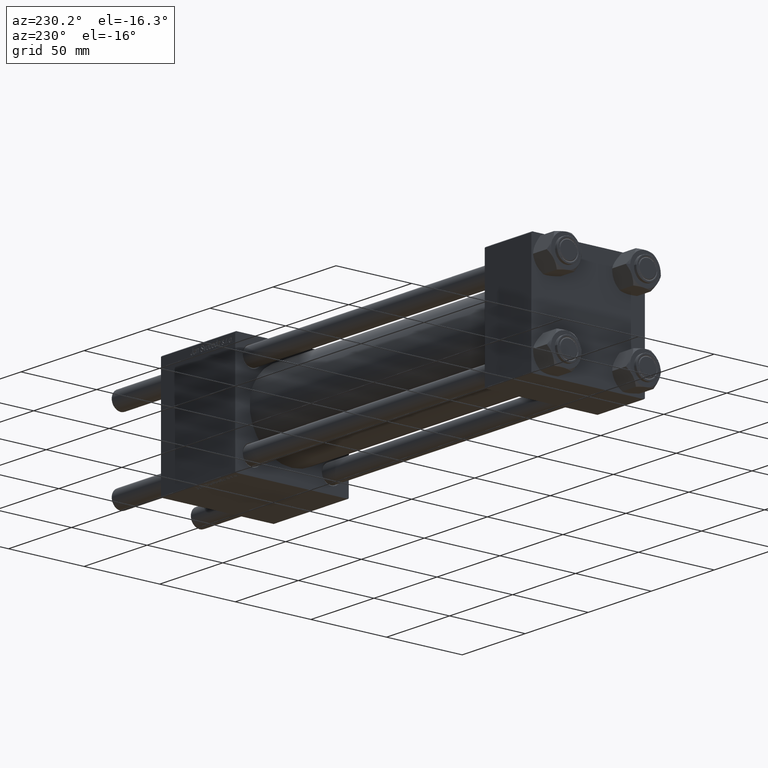
[diagram: clean part render]
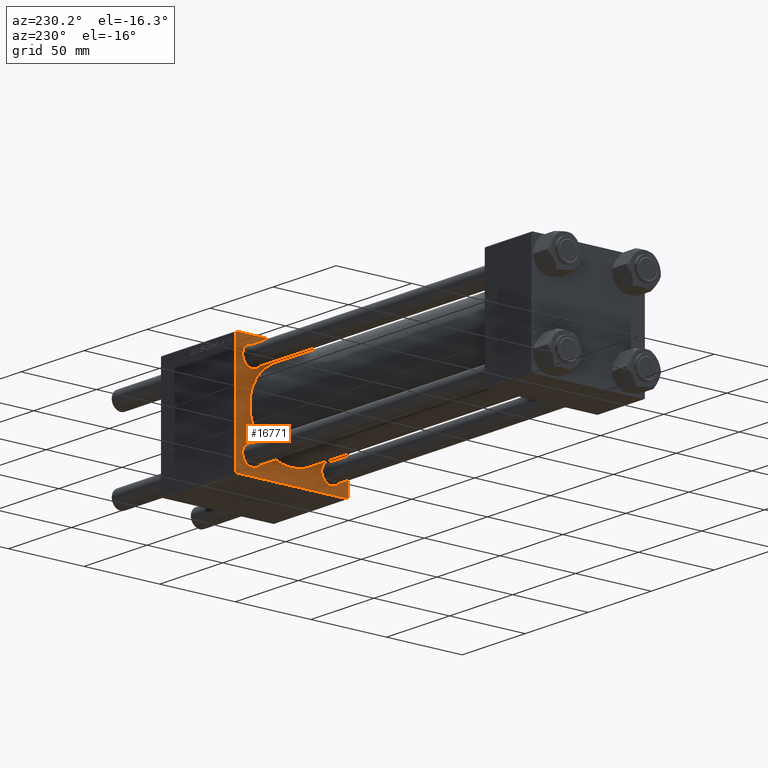
[diagram: same view with one face highlighted and labeled with its STEP entity id]
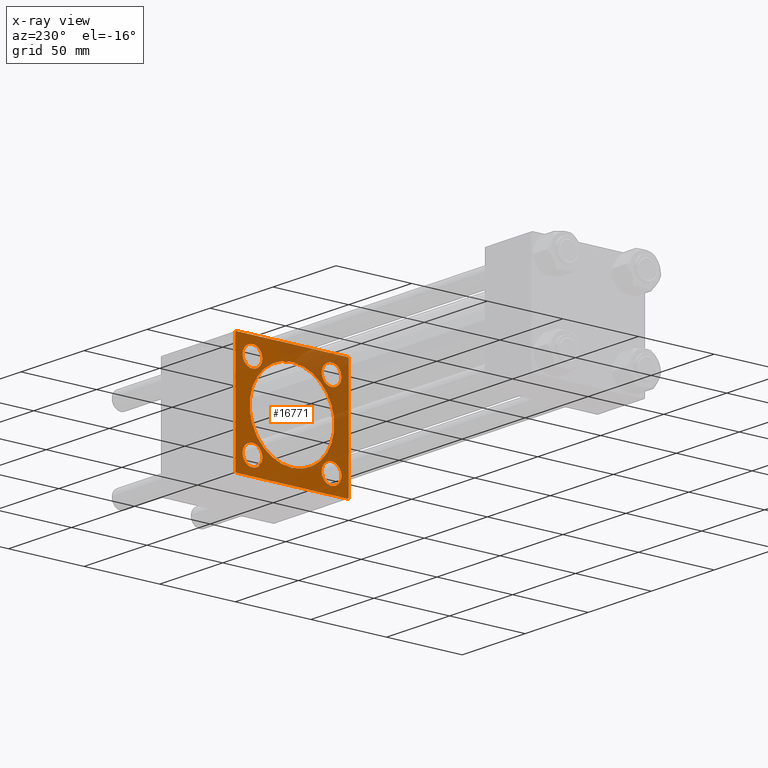
[diagram: x-ray of the same camera — body ghosted, the highlighted face saturated]
A machine part, auxiliary view. The second image highlights one B-rep face of the part: STEP entity #16771.
The next image is the same camera in x-ray: the body ghosted, the highlighted face saturated — about 33% of this face is hidden behind the body in this view.
In plain terms, the highlighted planar face has unit normal (-1, 0, 0).
Its self-contained STEP definition (entity closure, byte-faithful):
#859 = LINE ( 'NONE', #8633, #7386 ) ;
#883 = CARTESIAN_POINT ( 'NONE',  ( 235.0000000000000284, 37.00000000000000000, -37.50000000000000000 ) ) ;
#1701 = AXIS2_PLACEMENT_3D ( 'NONE', #6895, #24392, #55730 ) ;
#1917 = VERTEX_POINT ( 'NONE', #37112 ) ;
#1967 = DIRECTION ( 'NONE',  ( 0.000000000000000000, -9.251858538542972814E-17, -1.000000000000000000 ) ) ;
#2142 = VERTEX_POINT ( 'NONE', #883 ) ;
#3424 = VECTOR ( 'NONE', #37780, 1000.000000000000114 ) ;
#3465 = CIRCLE ( 'NONE', #50236, 6.500000000000002665 ) ;
#3763 = ORIENTED_EDGE ( 'NONE', *, *, #24538, .T. ) ;
#3917 = ORIENTED_EDGE ( 'NONE', *, *, #38384, .T. ) ;
#4078 = DIRECTION ( 'NONE',  ( 1.000000000000000000, 0.000000000000000000, -0.000000000000000000 ) ) ;
#4110 = DIRECTION ( 'NONE',  ( 0.000000000000000000, -1.000000000000000000, 0.000000000000000000 ) ) ;
#4135 = CARTESIAN_POINT ( 'NONE',  ( 235.0000000000000284, 26.14999999999999858, -26.15000000000000213 ) ) ;
#6134 = ORIENTED_EDGE ( 'NONE', *, *, #55759, .T. ) ;
#6139 = LINE ( 'NONE', #40623, #56530 ) ;
#6682 = CARTESIAN_POINT ( 'NONE',  ( 235.0000000000000284, -26.14999999999999147, 26.15000000000000924 ) ) ;
#6757 = ORIENTED_EDGE ( 'NONE', *, *, #34964, .T. ) ;
#6895 = CARTESIAN_POINT ( 'NONE',  ( 235.0000000000000284, 26.14999999999999858, 26.15000000000000213 ) ) ;
#7386 = VECTOR ( 'NONE', #18357, 1000.000000000000000 ) ;
#7960 = FACE_OUTER_BOUND ( 'NONE', #50571, .T. ) ;
#8382 = LINE ( 'NONE', #46858, #45947 ) ;
#8420 = CARTESIAN_POINT ( 'NONE',  ( 235.0000000000000284, 37.50000000000000000, -37.50000000000000000 ) ) ;
#8633 = CARTESIAN_POINT ( 'NONE',  ( 235.0000000000000284, 37.50000000000000000, 37.49999999999999289 ) ) ;
#8885 = ORIENTED_EDGE ( 'NONE', *, *, #37897, .T. ) ;
#10380 = VERTEX_POINT ( 'NONE', #39417 ) ;
#10466 = CARTESIAN_POINT ( 'NONE',  ( 235.0000000000000284, -26.14999999999999147, -26.15000000000000924 ) ) ;
#10504 = VECTOR ( 'NONE', #1967, 1000.000000000000000 ) ;
#10698 = CARTESIAN_POINT ( 'NONE',  ( 235.0000000000000284, -26.14999999999999147, 26.15000000000000924 ) ) ;
#11024 = VERTEX_POINT ( 'NONE', #40889 ) ;
#11820 = VERTEX_POINT ( 'NONE', #25903 ) ;
#12475 = DIRECTION ( 'NONE',  ( 0.000000000000000000, 0.000000000000000000, -1.000000000000000000 ) ) ;
#12562 = CIRCLE ( 'NONE', #44652, 6.500000000000002665 ) ;
#12749 = ORIENTED_EDGE ( 'NONE', *, *, #46631, .T. ) ;
#13276 = VERTEX_POINT ( 'NONE', #16789 ) ;
#13920 = ORIENTED_EDGE ( 'NONE', *, *, #26746, .T. ) ;
#14691 = ORIENTED_EDGE ( 'NONE', *, *, #14775, .F. ) ;
#14709 = DIRECTION ( 'NONE',  ( 1.000000000000000000, 0.000000000000000000, -0.000000000000000000 ) ) ;
#14775 = EDGE_CURVE ( 'NONE', #11024, #45839, #45607, .T. ) ;
#15353 = AXIS2_PLACEMENT_3D ( 'NONE', #10698, #14709, #32213 ) ;
#15654 = CARTESIAN_POINT ( 'NONE',  ( 235.0000000000000284, -37.24999999999997158, -37.24999999999997158 ) ) ;
#15923 = VERTEX_POINT ( 'NONE', #21741 ) ;
#16771 = ADVANCED_FACE ( 'NONE', ( #20862, #55925, #30037, #17134, #56215, #7960 ), #42705, .T. ) ;
#16789 = CARTESIAN_POINT ( 'NONE',  ( 235.0000000000000284, -2.602085213965210642E-15, 28.00000000000000000 ) ) ;
#17134 = FACE_BOUND ( 'NONE', #32655, .T. ) ;
#18357 = DIRECTION ( 'NONE',  ( 0.000000000000000000, -1.000000000000000000, -1.850371707708594316E-16 ) ) ;
#18519 = ORIENTED_EDGE ( 'NONE', *, *, #38591, .T. ) ;
#19854 = CIRCLE ( 'NONE', #20756, 6.499999999999946709 ) ;
#19928 = ORIENTED_EDGE ( 'NONE', *, *, #41701, .T. ) ;
#20641 = VERTEX_POINT ( 'NONE', #50965 ) ;
#20756 = AXIS2_PLACEMENT_3D ( 'NONE', #4135, #21631, #34001 ) ;
#20862 = FACE_BOUND ( 'NONE', #43942, .T. ) ;
#21631 = DIRECTION ( 'NONE',  ( 1.000000000000000000, 0.000000000000000000, -0.000000000000000000 ) ) ;
#21741 = CARTESIAN_POINT ( 'NONE',  ( 235.0000000000000284, -26.14999999999999147, -19.65000000000006253 ) ) ;
#21857 = ORIENTED_EDGE ( 'NONE', *, *, #31066, .T. ) ;
#23560 = CARTESIAN_POINT ( 'NONE',  ( 235.0000000000000284, 37.50000000000000000, 36.99999999999999289 ) ) ;
#23613 = DIRECTION ( 'NONE',  ( 0.000000000000000000, 0.000000000000000000, 1.000000000000000000 ) ) ;
#24222 = CARTESIAN_POINT ( 'NONE',  ( 235.0000000000000284, -36.99999999999994316, 37.49999999999997868 ) ) ;
#24392 = DIRECTION ( 'NONE',  ( 1.000000000000000000, 0.000000000000000000, -0.000000000000000000 ) ) ;
#24538 = EDGE_CURVE ( 'NONE', #43777, #48987, #42317, .T. ) ;
#25450 = DIRECTION ( 'NONE',  ( -1.000000000000000000, -0.000000000000000000, 0.000000000000000000 ) ) ;
#25881 = CARTESIAN_POINT ( 'NONE',  ( 235.0000000000000284, -26.14999999999999147, -26.15000000000000924 ) ) ;
#25903 = CARTESIAN_POINT ( 'NONE',  ( 235.0000000000000284, -36.99999999999995737, -37.50000000000000000 ) ) ;
#26288 = VECTOR ( 'NONE', #33973, 1000.000000000000000 ) ;
#26435 = CIRCLE ( 'NONE', #30117, 6.499999999999946709 ) ;
#26746 = EDGE_CURVE ( 'NONE', #1917, #42204, #44695, .T. ) ;
#26954 = EDGE_LOOP ( 'NONE', ( #19928, #18519 ) ) ;
#27262 = VERTEX_POINT ( 'NONE', #43115 ) ;
#27484 = CARTESIAN_POINT ( 'NONE',  ( 235.0000000000000284, 26.14999999999999858, -26.15000000000000213 ) ) ;
#27788 = CARTESIAN_POINT ( 'NONE',  ( 235.0000000000000284, -37.50000000000000000, 37.49999999999997868 ) ) ;
#28128 = ORIENTED_EDGE ( 'NONE', *, *, #31826, .T. ) ;
#28158 = CARTESIAN_POINT ( 'NONE',  ( 235.0000000000000284, -37.50000000000000711, -36.99999999999995026 ) ) ;
#30037 = FACE_BOUND ( 'NONE', #53405, .T. ) ;
#30117 = AXIS2_PLACEMENT_3D ( 'NONE', #10466, #45481, #46608 ) ;
#30157 = VERTEX_POINT ( 'NONE', #24222 ) ;
#30812 = DIRECTION ( 'NONE',  ( 1.000000000000000000, 0.000000000000000000, 0.000000000000000000 ) ) ;
#30864 = VECTOR ( 'NONE', #50912, 1000.000000000000000 ) ;
#31066 = EDGE_CURVE ( 'NONE', #27262, #20641, #19854, .T. ) ;
#31826 = EDGE_CURVE ( 'NONE', #13276, #10380, #55673, .T. ) ;
#31906 = EDGE_CURVE ( 'NONE', #43958, #2142, #40323, .T. ) ;
#32213 = DIRECTION ( 'NONE',  ( 0.000000000000000000, 0.000000000000000000, 1.000000000000000000 ) ) ;
#32444 = VERTEX_POINT ( 'NONE', #45782 ) ;
#32655 = EDGE_LOOP ( 'NONE', ( #33312, #40655 ) ) ;
#33312 = ORIENTED_EDGE ( 'NONE', *, *, #52358, .T. ) ;
#33375 = CARTESIAN_POINT ( 'NONE',  ( 235.0000000000000284, 37.25000000000127898, -37.24999999999869260 ) ) ;
#33519 = EDGE_CURVE ( 'NONE', #10380, #13276, #56612, .T. ) ;
#33786 = CIRCLE ( 'NONE', #1701, 6.500000000000002665 ) ;
#33973 = DIRECTION ( 'NONE',  ( 0.000000000000000000, 0.7071067811865672237, -0.7071067811865279218 ) ) ;
#34001 = DIRECTION ( 'NONE',  ( 0.000000000000000000, 0.000000000000000000, 1.000000000000000000 ) ) ;
#34074 = AXIS2_PLACEMENT_3D ( 'NONE', #27484, #40447, #53952 ) ;
#34162 = VERTEX_POINT ( 'NONE', #34502 ) ;
#34502 = CARTESIAN_POINT ( 'NONE',  ( 235.0000000000000284, 26.14999999999999858, 32.65000000000001279 ) ) ;
#34964 = EDGE_CURVE ( 'NONE', #48987, #43958, #6139, .T. ) ;
#35058 = DIRECTION ( 'NONE',  ( 1.000000000000000000, 0.000000000000000000, 0.000000000000000000 ) ) ;
#36500 = DIRECTION ( 'NONE',  ( 0.000000000000000000, 0.000000000000000000, 1.000000000000000000 ) ) ;
#37112 = CARTESIAN_POINT ( 'NONE',  ( 235.0000000000000284, -26.14999999999999147, 32.65000000000001279 ) ) ;
#37780 = DIRECTION ( 'NONE',  ( 0.000000000000000000, -0.7071067811865474617, 0.7071067811865474617 ) ) ;
#37843 = DIRECTION ( 'NONE',  ( 0.000000000000000000, 0.000000000000000000, 1.000000000000000000 ) ) ;
#37897 = EDGE_CURVE ( 'NONE', #11820, #45839, #40954, .T. ) ;
#37978 = DIRECTION ( 'NONE',  ( -0.000000000000000000, 0.7071067811865474617, 0.7071067811865474617 ) ) ;
#38384 = EDGE_CURVE ( 'NONE', #42204, #1917, #12562, .T. ) ;
#38591 = EDGE_CURVE ( 'NONE', #39066, #34162, #3465, .T. ) ;
#38860 = CARTESIAN_POINT ( 'NONE',  ( 235.0000000000000284, 37.24999999999894840, 37.25000000000101608 ) ) ;
#39066 = VERTEX_POINT ( 'NONE', #53835 ) ;
#39417 = CARTESIAN_POINT ( 'NONE',  ( 235.0000000000000284, 8.269258236473784371E-16, -28.00000000000000000 ) ) ;
#40323 = LINE ( 'NONE', #33375, #30864 ) ;
#40447 = DIRECTION ( 'NONE',  ( 1.000000000000000000, 0.000000000000000000, -0.000000000000000000 ) ) ;
#40623 = CARTESIAN_POINT ( 'NONE',  ( 235.0000000000000284, 37.50000000000000000, 37.49999999999999289 ) ) ;
#40655 = ORIENTED_EDGE ( 'NONE', *, *, #42669, .T. ) ;
#40889 = CARTESIAN_POINT ( 'NONE',  ( 235.0000000000000284, -37.50000000000000000, 36.99999999999992184 ) ) ;
#40954 = LINE ( 'NONE', #15654, #3424 ) ;
#41701 = EDGE_CURVE ( 'NONE', #34162, #39066, #33786, .T. ) ;
#42204 = VERTEX_POINT ( 'NONE', #43716 ) ;
#42317 = LINE ( 'NONE', #38860, #26288 ) ;
#42669 = EDGE_CURVE ( 'NONE', #32444, #15923, #26435, .T. ) ;
#42705 = PLANE ( 'NONE',  #47127 ) ;
#42883 = LINE ( 'NONE', #8420, #51348 ) ;
#43115 = CARTESIAN_POINT ( 'NONE',  ( 235.0000000000000284, 26.14999999999999858, -19.65000000000005542 ) ) ;
#43130 = CIRCLE ( 'NONE', #46905, 6.499999999999946709 ) ;
#43248 = ORIENTED_EDGE ( 'NONE', *, *, #31906, .T. ) ;
#43268 = CARTESIAN_POINT ( 'NONE',  ( 235.0000000000000284, 0.000000000000000000, 0.000000000000000000 ) ) ;
#43412 = DIRECTION ( 'NONE',  ( 0.000000000000000000, 0.000000000000000000, 1.000000000000000000 ) ) ;
#43716 = CARTESIAN_POINT ( 'NONE',  ( 235.0000000000000284, -26.14999999999999147, 19.65000000000000568 ) ) ;
#43777 = VERTEX_POINT ( 'NONE', #56603 ) ;
#43871 = ORIENTED_EDGE ( 'NONE', *, *, #49981, .F. ) ;
#43942 = EDGE_LOOP ( 'NONE', ( #13920, #3917 ) ) ;
#43958 = VERTEX_POINT ( 'NONE', #46478 ) ;
#44514 = CARTESIAN_POINT ( 'NONE',  ( 235.0000000000000284, -2.602085213965210642E-15, 0.000000000000000000 ) ) ;
#44652 = AXIS2_PLACEMENT_3D ( 'NONE', #6682, #55227, #23613 ) ;
#44695 = CIRCLE ( 'NONE', #15353, 6.500000000000002665 ) ;
#44908 = DIRECTION ( 'NONE',  ( 0.000000000000000000, 0.000000000000000000, -1.000000000000000000 ) ) ;
#45481 = DIRECTION ( 'NONE',  ( 1.000000000000000000, 0.000000000000000000, -0.000000000000000000 ) ) ;
#45607 = LINE ( 'NONE', #27788, #10504 ) ;
#45782 = CARTESIAN_POINT ( 'NONE',  ( 235.0000000000000284, -26.14999999999999147, -32.64999999999995595 ) ) ;
#45839 = VERTEX_POINT ( 'NONE', #28158 ) ;
#45947 = VECTOR ( 'NONE', #37978, 1000.000000000000114 ) ;
#46478 = CARTESIAN_POINT ( 'NONE',  ( 235.0000000000000284, 37.50000000000000000, -36.99999999999996447 ) ) ;
#46608 = DIRECTION ( 'NONE',  ( 0.000000000000000000, 0.000000000000000000, 1.000000000000000000 ) ) ;
#46631 = EDGE_CURVE ( 'NONE', #2142, #11820, #42883, .T. ) ;
#46858 = CARTESIAN_POINT ( 'NONE',  ( 235.0000000000000284, -37.24999999999995737, 37.24999999999995737 ) ) ;
#46905 = AXIS2_PLACEMENT_3D ( 'NONE', #25881, #4078, #43412 ) ;
#47017 = CARTESIAN_POINT ( 'NONE',  ( 235.0000000000000284, 26.14999999999999858, 26.15000000000000213 ) ) ;
#47127 = AXIS2_PLACEMENT_3D ( 'NONE', #43268, #25450, #37843 ) ;
#47184 = ORIENTED_EDGE ( 'NONE', *, *, #33519, .T. ) ;
#48270 = DIRECTION ( 'NONE',  ( 0.000000000000000000, 0.000000000000000000, -1.000000000000000000 ) ) ;
#48987 = VERTEX_POINT ( 'NONE', #23560 ) ;
#49708 = DIRECTION ( 'NONE',  ( 1.000000000000000000, 0.000000000000000000, -0.000000000000000000 ) ) ;
#49981 = EDGE_CURVE ( 'NONE', #43777, #30157, #859, .T. ) ;
#50236 = AXIS2_PLACEMENT_3D ( 'NONE', #47017, #49708, #36500 ) ;
#50517 = EDGE_LOOP ( 'NONE', ( #28128, #47184 ) ) ;
#50571 = EDGE_LOOP ( 'NONE', ( #12749, #8885, #14691, #55438, #43871, #3763, #6757, #43248 ) ) ;
#50912 = DIRECTION ( 'NONE',  ( -0.000000000000000000, -0.7071067811865230368, -0.7071067811865721087 ) ) ;
#50965 = CARTESIAN_POINT ( 'NONE',  ( 235.0000000000000284, 26.14999999999999858, -32.64999999999994884 ) ) ;
#51348 = VECTOR ( 'NONE', #4110, 1000.000000000000000 ) ;
#51513 = CIRCLE ( 'NONE', #34074, 6.499999999999946709 ) ;
#51841 = CARTESIAN_POINT ( 'NONE',  ( 235.0000000000000284, -2.602085213965210642E-15, 0.000000000000000000 ) ) ;
#52358 = EDGE_CURVE ( 'NONE', #15923, #32444, #43130, .T. ) ;
#53405 = EDGE_LOOP ( 'NONE', ( #21857, #6134 ) ) ;
#53835 = CARTESIAN_POINT ( 'NONE',  ( 235.0000000000000284, 26.14999999999999858, 19.64999999999999858 ) ) ;
#53952 = DIRECTION ( 'NONE',  ( 0.000000000000000000, 0.000000000000000000, 1.000000000000000000 ) ) ;
#54629 = EDGE_CURVE ( 'NONE', #11024, #30157, #8382, .T. ) ;
#54799 = AXIS2_PLACEMENT_3D ( 'NONE', #44514, #35058, #48270 ) ;
#55227 = DIRECTION ( 'NONE',  ( 1.000000000000000000, 0.000000000000000000, -0.000000000000000000 ) ) ;
#55438 = ORIENTED_EDGE ( 'NONE', *, *, #54629, .T. ) ;
#55673 = CIRCLE ( 'NONE', #56569, 28.00000000000000000 ) ;
#55730 = DIRECTION ( 'NONE',  ( 0.000000000000000000, 0.000000000000000000, 1.000000000000000000 ) ) ;
#55759 = EDGE_CURVE ( 'NONE', #20641, #27262, #51513, .T. ) ;
#55925 = FACE_BOUND ( 'NONE', #26954, .T. ) ;
#56215 = FACE_BOUND ( 'NONE', #50517, .T. ) ;
#56530 = VECTOR ( 'NONE', #44908, 1000.000000000000000 ) ;
#56569 = AXIS2_PLACEMENT_3D ( 'NONE', #51841, #30812, #12475 ) ;
#56603 = CARTESIAN_POINT ( 'NONE',  ( 235.0000000000000284, 36.99999999999997158, 37.49999999999999289 ) ) ;
#56612 = CIRCLE ( 'NONE', #54799, 28.00000000000000000 ) ;